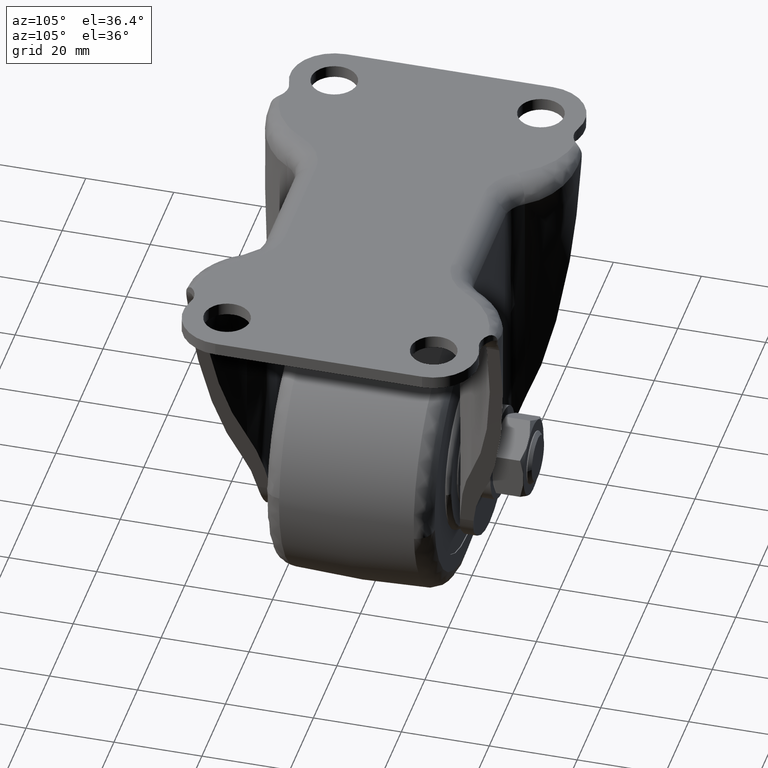
[diagram: clean part render]
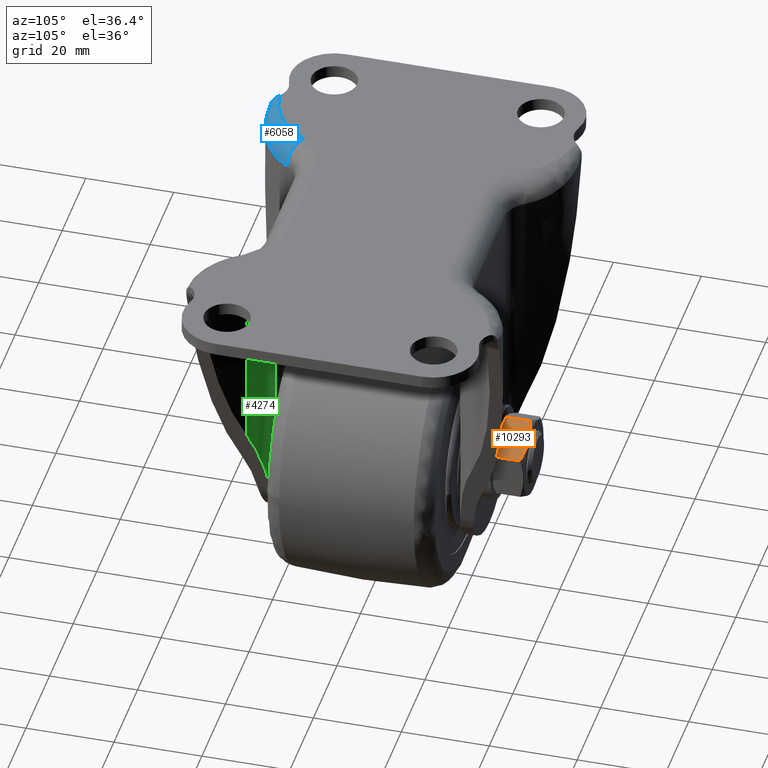
[diagram: same view with three faces highlighted in distinct colors, each labeled with its STEP entity id]
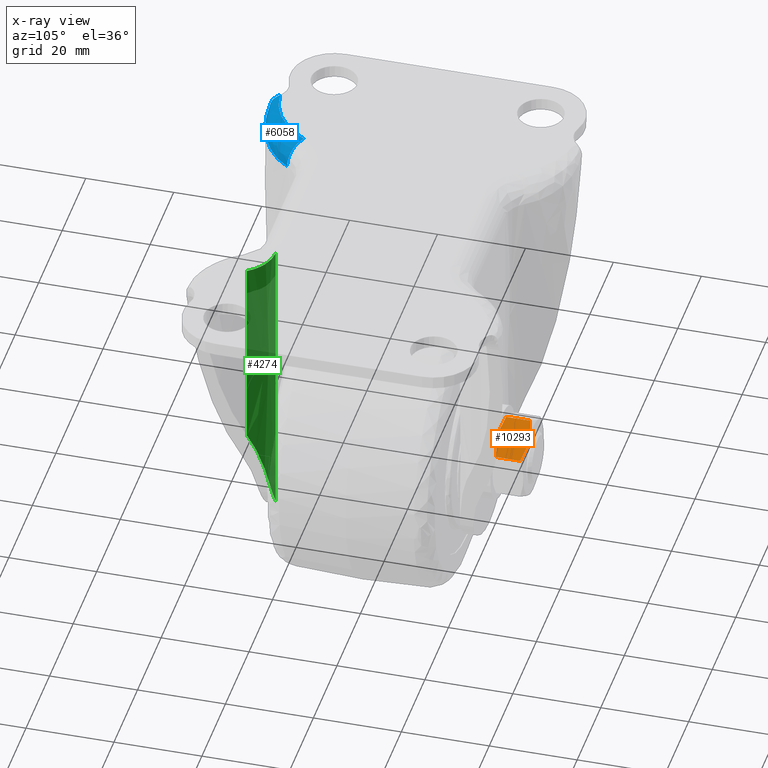
[diagram: x-ray of the same camera — body ghosted, the three highlighted faces saturated]
A machine part, auxiliary view with three faces highlighted in distinct colors.
The next image is the same camera in x-ray (body ghosted, the three faces saturated) — at least one of them is partly hidden behind the body in this view.
Their STEP definitions:

[orange] entity #10293 — the highlighted face is a freeform B-spline surface patch.
#9803=CARTESIAN_POINT('',(8.500094999995781,27.759237460925249,-54.592521999999903));
#9804=VERTEX_POINT('',#9803);
#9826=CARTESIAN_POINT('',(0.000094999995781,27.759190000265502,-49.685044999999903));
#9827=VERTEX_POINT('',#9826);
#9828=CARTESIAN_POINT('',(0.000094999995781,27.759190000265502,-49.685044999999903));
#9829=CARTESIAN_POINT('',(0.694040081405281,27.527878749850561,-50.085694356032860));
#9830=CARTESIAN_POINT('',(1.393044515023737,27.337237662208860,-50.489264730254121));
#9831=CARTESIAN_POINT('',(2.452484572657468,27.139165434838318,-51.100932696808947));
#9832=CARTESIAN_POINT('',(2.807457861974590,27.087824712988919,-51.305876608919348));
#9833=CARTESIAN_POINT('',(3.521538408228838,27.018374625610232,-51.718151180318159));
#9834=CARTESIAN_POINT('',(3.880649237177674,27.000293974092500,-51.925483901908443));
#9835=CARTESIAN_POINT('',(4.422640181580631,26.999898973666809,-52.238402501186798));
#9836=CARTESIAN_POINT('',(4.604219428678799,27.004235044939271,-52.343237322223430));
#9837=CARTESIAN_POINT('',(4.965730268520192,27.021703260257489,-52.551955690667207));
#9838=CARTESIAN_POINT('',(5.145857666305345,27.034815216462000,-52.655952286161387));
#9839=CARTESIAN_POINT('',(5.684437335904236,27.086716209072229,-52.966901385128949));
#9840=CARTESIAN_POINT('',(6.041082870128923,27.138099743471710,-53.172810768230157));
#9841=CARTESIAN_POINT('',(7.104669812751475,27.336512878907659,-53.786872939809037));
#9842=CARTESIAN_POINT('',(7.805286305197561,27.527632524756552,-54.191374036573727));
#9843=CARTESIAN_POINT('',(8.500094999995811,27.759237460925029,-54.592521999999917));
#9844=B_SPLINE_CURVE_WITH_KNOTS('',3,(#9828,#9829,#9830,#9831,#9832,#9833,#9834,#9835,#9836,#9837,#9838,#9839,#9840,#9841,#9842,#9843),.UNSPECIFIED.,.F.,.U.,(4,2,2,2,2,2,2,4),(0.0,0.250000000000001,0.375000000000000,0.499999999999999,0.562499999999999,0.624999999999998,0.750000000000000,1.0),.UNSPECIFIED.);
#9845=EDGE_CURVE('',#9827,#9804,#9844,.T.);
#10199=CARTESIAN_POINT('',(0.000094999995781,33.240809999734701,-49.685044999999903));
#10200=VERTEX_POINT('',#10199);
#10216=CARTESIAN_POINT('',(8.500094999995781,33.240762539074950,-54.592521999999903));
#10217=VERTEX_POINT('',#10216);
#10218=CARTESIAN_POINT('',(8.500094999995781,33.240762539074950,-54.592521999999903));
#10219=CARTESIAN_POINT('',(7.806151379455720,33.472079114620428,-54.191873487400237));
#10220=CARTESIAN_POINT('',(7.107148276984080,33.662726922728311,-53.788303881716963));
#10221=CARTESIAN_POINT('',(6.047709813153969,33.860811260827383,-53.176636835345008));
#10222=CARTESIAN_POINT('',(5.692736986169851,33.912156345705078,-52.971693190162647));
#10223=CARTESIAN_POINT('',(4.978657172070663,33.981615603839728,-52.559419041473760));
#10224=CARTESIAN_POINT('',(4.619546612540989,33.999701061567933,-52.352086475432657));
#10225=CARTESIAN_POINT('',(4.077555882091682,34.000103344805247,-52.039167999680529));
#10226=CARTESIAN_POINT('',(3.895976625238374,33.995769718248972,-51.934333173011773));
#10227=CARTESIAN_POINT('',(3.534465476368421,33.978306304553492,-51.725614626150197));
#10228=CARTESIAN_POINT('',(3.354337897402191,33.965196712406033,-51.621617926051123));
#10229=CARTESIAN_POINT('',(2.815757616886254,33.913302642591297,-51.310668474370473));
#10230=CARTESIAN_POINT('',(2.459111586067389,33.861923492466062,-51.104758804560490));
#10231=CARTESIAN_POINT('',(1.395522973615695,33.663522513836647,-50.490695668905367));
#10232=CARTESIAN_POINT('',(0.694905135966215,33.472409596961690,-50.086193795487183));
#10233=CARTESIAN_POINT('',(0.000094999995753,33.240809999734907,-49.685044999999889));
#10234=B_SPLINE_CURVE_WITH_KNOTS('',3,(#10218,#10219,#10220,#10221,#10222,#10223,#10224,#10225,#10226,#10227,#10228,#10229,#10230,#10231,#10232,#10233),.UNSPECIFIED.,.F.,.U.,(4,2,2,2,2,2,2,4),(0.0,0.249999999999998,0.374999999999997,0.499999999999996,0.562499999999997,0.624999999999997,0.749999999999998,1.0),.UNSPECIFIED.);
#10235=EDGE_CURVE('',#10217,#10200,#10234,.T.);
#10268=CARTESIAN_POINT('',(8.500094999995781,33.240762539074950,-54.592521999999903));
#10269=CARTESIAN_POINT('',(8.500094999995781,27.759237460925249,-54.592521999999903));
#10270=QUASI_UNIFORM_CURVE('',1,(#10268,#10269),.UNSPECIFIED.,.F.,.U.);
#10271=EDGE_CURVE('',#10217,#9804,#10270,.T.);
#10278=CARTESIAN_POINT('',(8.924669983521138,26.650380514689090,-54.837650466638252));
#10279=CARTESIAN_POINT('',(-0.424480211517340,26.650380514689090,-49.439916401732759));
#10280=CARTESIAN_POINT('',(8.924669983521138,34.349619673029892,-54.837650466638252));
#10281=CARTESIAN_POINT('',(-0.424480211517340,34.349619673029892,-49.439916401732759));
#10282=B_SPLINE_SURFACE_WITH_KNOTS('',1,1,((#10278,#10280),(#10279,#10281)),.UNSPECIFIED.,.F.,.F.,.U.,(2,2),(2,2),(0.0,10.795468605152310),(0.0,7.699239158340805),.UNSPECIFIED.);
#10283=ORIENTED_EDGE('',*,*,#10235,.T.);
#10284=CARTESIAN_POINT('',(0.000094999995781,33.240809999734701,-49.685044999999903));
#10285=CARTESIAN_POINT('',(0.000094999995781,27.759190000265502,-49.685044999999903));
#10286=QUASI_UNIFORM_CURVE('',1,(#10284,#10285),.UNSPECIFIED.,.F.,.U.);
#10287=EDGE_CURVE('',#10200,#9827,#10286,.T.);
#10288=ORIENTED_EDGE('',*,*,#10287,.T.);
#10289=ORIENTED_EDGE('',*,*,#9845,.T.);
#10290=ORIENTED_EDGE('',*,*,#10271,.F.);
#10291=EDGE_LOOP('',(#10283,#10288,#10289,#10290));
#10292=FACE_OUTER_BOUND('',#10291,.T.);
#10293=ADVANCED_FACE('',(#10292),#10282,.F.);

[blue] entity #6058 — the highlighted face is a freeform B-spline surface patch.
#3959=CARTESIAN_POINT('',(-18.621833761987101,-27.051020408163250,-5.0));
#3960=VERTEX_POINT('',#3959);
#3961=CARTESIAN_POINT('',(-35.764846533676099,-35.400926609159747,-2.000748511052920));
#3962=VERTEX_POINT('',#3961);
#3963=CARTESIAN_POINT('',(-18.621833761987119,-27.051020408163279,-5.000000000000004));
#3964=CARTESIAN_POINT('',(-18.722879082576739,-27.209233532115029,-4.999279782243343));
#3965=CARTESIAN_POINT('',(-18.926539454922018,-27.528117608546271,-4.997828158203402));
#3966=CARTESIAN_POINT('',(-19.253390274609622,-27.997490791424561,-4.986346314740322));
#3967=CARTESIAN_POINT('',(-19.599171201225619,-28.463830583078970,-4.968090480306860));
#3968=CARTESIAN_POINT('',(-19.965597633624022,-28.925274922069089,-4.942362338849053));
#3969=CARTESIAN_POINT('',(-20.352558003409332,-29.381042038472881,-4.909353411777840));
#3970=CARTESIAN_POINT('',(-20.760388212209438,-29.830005288616292,-4.869011256139199));
#3971=CARTESIAN_POINT('',(-21.189243929729500,-30.271085109472342,-4.821350290839388));
#3972=CARTESIAN_POINT('',(-21.639268415103022,-30.703143110346229,-4.766366609129262));
#3973=CARTESIAN_POINT('',(-22.110542221549888,-31.125012917802810,-4.704061282451288));
#3974=CARTESIAN_POINT('',(-22.603092676041999,-31.535493865852029,-4.634434145531365));
#3975=CARTESIAN_POINT('',(-23.116886821344359,-31.933355122998279,-4.557484851452400));
#3976=CARTESIAN_POINT('',(-23.651829408740021,-32.317337540253313,-4.473215057281177));
#3977=CARTESIAN_POINT('',(-24.207757532420970,-32.686155527372733,-4.381618392313380));
#3978=CARTESIAN_POINT('',(-24.784443819060581,-33.038502869521388,-4.282719174705983));
#3979=CARTESIAN_POINT('',(-25.381568378748089,-33.373044143164577,-4.176424696567776));
#3980=CARTESIAN_POINT('',(-25.978087597627969,-33.677873325669701,-4.066893212338185));
#3981=CARTESIAN_POINT('',(-26.586494235021540,-33.961050105032513,-3.950799442732903));
#3982=CARTESIAN_POINT('',(-27.220694071399201,-34.228403306437727,-3.825622256542251));
#3983=CARTESIAN_POINT('',(-27.917780163858829,-34.490120339301477,-3.684922662546641));
#3984=CARTESIAN_POINT('',(-28.678998770921790,-34.739207216879343,-3.528591432860134));
#3985=CARTESIAN_POINT('',(-29.505180704955841,-34.968024589436133,-3.356654268774770));
#3986=CARTESIAN_POINT('',(-30.396597473582609,-35.168325050231253,-3.169099012967021));
#3987=CARTESIAN_POINT('',(-31.352818398185931,-35.331132377072237,-2.965922055735010));
#3988=CARTESIAN_POINT('',(-32.372637126040829,-35.447399560206897,-2.747134213437073));
#3989=CARTESIAN_POINT('',(-33.453643086455337,-35.505575007803373,-2.512677466261931));
#3990=CARTESIAN_POINT('',(-34.593212877330210,-35.501796100445063,-2.262778093498057));
#3991=CARTESIAN_POINT('',(-35.367998184380419,-35.435092940527220,-2.089501526912427));
#3992=CARTESIAN_POINT('',(-35.764846605445612,-35.400927290439938,-2.000748512068995));
#3993=B_SPLINE_CURVE_WITH_KNOTS('',3,(#3963,#3964,#3965,#3966,#3967,#3968,#3969,#3970,#3971,#3972,#3973,#3974,#3975,#3976,#3977,#3978,#3979,#3980,#3981,#3982,#3983,#3984,#3985,#3986,#3987,#3988,#3989,#3990,#3991,#3992),.UNSPECIFIED.,.F.,.U.,(4,1,1,1,1,1,1,1,1,1,1,1,1,1,1,1,1,1,1,1,1,1,1,1,1,1,1,4),(0.0,0.027659186453864,0.055748056209740,0.084271005370457,0.113232232273239,0.142635747423386,0.172485382957289,0.202784801645888,0.233537505451716,0.264746843654122,0.296416020558378,0.328548102805012,0.361146026296170,0.394212602755969,0.427750525941749,0.461762377523000,0.496250632644360,0.527744042084907,0.562093961092381,0.599302316875690,0.639370600439464,0.682299980891362,0.728091384151486,0.776745548573920,0.828263065149670,0.882644407146548,0.939889952347740,1.0),.UNSPECIFIED.);
#3994=EDGE_CURVE('',#3960,#3962,#3993,.T.);
#4445=CARTESIAN_POINT('',(-35.766013286104453,-35.398302573218047,-1.908834651076770));
#4446=VERTEX_POINT('',#4445);
#4463=CARTESIAN_POINT('',(-37.161353402992098,-33.556329244536649,0.0));
#4464=VERTEX_POINT('',#4463);
#4465=CARTESIAN_POINT('',(-35.766013286104453,-35.398302573218047,-1.908834651076770));
#4466=CARTESIAN_POINT('',(-35.766298377834580,-35.397635589379469,-1.892002950340468));
#4467=CARTESIAN_POINT('',(-35.767668234627727,-35.394433773405893,-1.828097132016503));
#4468=CARTESIAN_POINT('',(-35.772978054041403,-35.382047359985002,-1.717590204438918));
#4469=CARTESIAN_POINT('',(-35.783928849541617,-35.356835293366352,-1.578457269430277));
#4470=CARTESIAN_POINT('',(-35.799613601645277,-35.321396390601457,-1.441176746029262));
#4471=CARTESIAN_POINT('',(-35.820181878539849,-35.276062895165524,-1.305751464928546));
#4472=CARTESIAN_POINT('',(-35.862048103722998,-35.186579295587592,-1.088591458539992));
#4473=CARTESIAN_POINT('',(-35.942791169063753,-35.023882642571003,-0.804821222794657));
#4474=CARTESIAN_POINT('',(-36.076443654644493,-34.789509640075302,-0.539143930653563));
#4475=CARTESIAN_POINT('',(-36.221535567719762,-34.567138375807588,-0.351300009626354));
#4476=CARTESIAN_POINT('',(-36.363326986542027,-34.371335864828360,-0.222205891315228));
#4477=CARTESIAN_POINT('',(-36.526726384898573,-34.168857300254743,-0.122060838617019));
#4478=CARTESIAN_POINT('',(-36.713730408546873,-33.962647141471798,-0.051306802783097));
#4479=CARTESIAN_POINT('',(-36.924911849470433,-33.754296273479277,-0.007632265636836));
#4480=CARTESIAN_POINT('',(-37.081212954961863,-33.623428982964093,-0.002586910712232));
#4481=CARTESIAN_POINT('',(-37.161353402992098,-33.556329244536649,0.0));
#4482=B_SPLINE_CURVE_WITH_KNOTS('',3,(#4465,#4466,#4467,#4468,#4469,#4470,#4471,#4472,#4473,#4474,#4475,#4476,#4477,#4478,#4479,#4480,#4481),.UNSPECIFIED.,.F.,.U.,(4,1,1,1,1,1,1,1,1,1,1,1,1,1,4),(0.026803939648019,0.041543947569744,0.082807145297144,0.124044897793733,0.165512977007265,0.207462938230864,0.250137810844705,0.374109604033202,0.499569613552021,0.578663114780517,0.657933200217229,0.738598211159108,0.821815175455286,0.908639087188106,1.0),.UNSPECIFIED.);
#4483=EDGE_CURVE('',#4446,#4464,#4482,.T.);
#5115=CARTESIAN_POINT('',(-35.766013286104453,-35.398302573218047,-1.908834651076770));
#5116=CARTESIAN_POINT('',(-35.765702087917873,-35.399880936368262,-1.939719168225256));
#5117=CARTESIAN_POINT('',(-35.765311975900147,-35.400743537032582,-1.970370798996724));
#5118=CARTESIAN_POINT('',(-35.764846533676099,-35.400926609159747,-2.000748511052920));
#5119=B_SPLINE_CURVE_WITH_KNOTS('',3,(#5115,#5116,#5117,#5118),.UNSPECIFIED.,.F.,.U.,(4,4),(0.000003221873084,0.996437514912697),.UNSPECIFIED.);
#5120=EDGE_CURVE('',#4446,#3962,#5119,.T.);
#5947=CARTESIAN_POINT('',(-22.859907161435100,-24.397959183673500,0.0));
#5948=VERTEX_POINT('',#5947);
#5949=CARTESIAN_POINT('',(-22.859907161435100,-24.397959183673500,0.0));
#5950=CARTESIAN_POINT('',(-18.621833761986807,-27.051020408162852,-1.734723E-015));
#5951=CARTESIAN_POINT('',(-18.621833761986821,-27.051020408162799,-5.0));
#5959=(BOUNDED_CURVE()B_SPLINE_CURVE(2,(#5949,#5950,#5951),.UNSPECIFIED.,.F.,.U.)CURVE()GEOMETRIC_REPRESENTATION_ITEM()QUASI_UNIFORM_CURVE()RATIONAL_B_SPLINE_CURVE((1.0,0.707106781186547,1.0))REPRESENTATION_ITEM(''));
#5960=EDGE_CURVE('',#5948,#3960,#5959,.T.);
#5980=CARTESIAN_POINT('',(-18.506352498116637,-26.865269835217052,-5.069965964481315));
#5981=CARTESIAN_POINT('',(-18.506352498001039,-26.865269835292217,-5.052515462511924));
#5982=CARTESIAN_POINT('',(-18.506352497768422,-26.865269835443453,-5.017401471808997));
#5983=CARTESIAN_POINT('',(-18.506352462553171,-26.865269858345869,-1.642856E-012));
#5984=CARTESIAN_POINT('',(-22.794959474091858,-24.255505667915404,6.684492E-015));
#5985=CARTESIAN_POINT('',(-22.827076367009173,-24.235961439082704,1.903773E-014));
#5986=CARTESIAN_POINT('',(-22.841830335985556,-24.226983143871927,2.471260E-014));
#5987=CARTESIAN_POINT('',(-20.662695439628383,-30.406820524234359,-5.090224766861125));
#5988=CARTESIAN_POINT('',(-20.662695448371434,-30.406820518580645,-5.072704531280184));
#5989=CARTESIAN_POINT('',(-20.662695465969652,-30.406820507200752,-5.037450222281660));
#5990=CARTESIAN_POINT('',(-20.662698130386456,-30.406818783906285,3.110683E-011));
#5991=CARTESIAN_POINT('',(-24.340901533173145,-26.752408095348201,-1.265687E-013));
#5992=CARTESIAN_POINT('',(-24.368447195760993,-26.725040614782081,-3.604732E-013));
#5993=CARTESIAN_POINT('',(-24.381101217222135,-26.712468447194897,-4.679251E-013));
#5994=CARTESIAN_POINT('',(-24.071124955865564,-33.150487796869889,-4.523771812519571));
#5995=CARTESIAN_POINT('',(-24.071124956162908,-33.150487796861853,-4.508201274759225));
#5996=CARTESIAN_POINT('',(-24.071124956761135,-33.150487796845688,-4.476870157802163));
#5997=CARTESIAN_POINT('',(-24.071125063969305,-33.150487787144002,6.439974E-015));
#5998=CARTESIAN_POINT('',(-26.340830825014891,-29.196622763471044,-2.005331E-017));
#5999=CARTESIAN_POINT('',(-26.357828392485050,-29.167012710489043,-5.702074E-017));
#6000=CARTESIAN_POINT('',(-26.365636793620428,-29.153410342283561,-7.400295E-017));
#6001=CARTESIAN_POINT('',(-29.902350219460864,-35.172589732166863,-3.338942202803280));
#6002=CARTESIAN_POINT('',(-29.902350156375572,-35.172589741907132,-3.327450024740806));
#6003=CARTESIAN_POINT('',(-29.902350029434977,-35.172589761506536,-3.304325404351669));
#6004=CARTESIAN_POINT('',(-29.902328005918967,-35.172593953365180,-8.644291E-013));
#6005=CARTESIAN_POINT('',(-30.591310577455204,-31.912243557093191,2.481292E-015));
#6006=CARTESIAN_POINT('',(-30.596470673180164,-31.887827988232107,7.051339E-015));
#6007=CARTESIAN_POINT('',(-30.598841135741331,-31.876611880047406,9.150743E-015));
#6008=CARTESIAN_POINT('',(-33.189965018952584,-35.717898636500671,-2.618125723527324));
#6009=CARTESIAN_POINT('',(-33.189965329204803,-35.717898588647799,-2.609113072433970));
#6010=CARTESIAN_POINT('',(-33.189965953495857,-35.717898492357875,-2.590977769091098));
#6011=CARTESIAN_POINT('',(-33.190074263663739,-35.717877890132996,-7.141898E-012));
#6012=CARTESIAN_POINT('',(-33.182907420530015,-33.095570856638972,3.415350E-014));
#6013=CARTESIAN_POINT('',(-33.182851864727141,-33.075928630270347,9.734684E-014));
#6014=CARTESIAN_POINT('',(-33.182826343311177,-33.066905316613656,1.263768E-013));
#6015=CARTESIAN_POINT('',(-36.473713202202859,-35.355177464473257,-1.868251025620592));
#6016=CARTESIAN_POINT('',(-36.473712552400571,-35.355177558944824,-1.861823191057364));
#6017=CARTESIAN_POINT('',(-36.473711244867395,-35.355177749051471,-1.848889068959562));
#6018=CARTESIAN_POINT('',(-36.473484505169807,-35.355219361384641,5.142896E-012));
#6019=CARTESIAN_POINT('',(-36.188593130010283,-33.524543408753132,-3.157552E-014));
#6020=CARTESIAN_POINT('',(-36.186463544147358,-33.510842183655299,-9.008772E-014));
#6021=CARTESIAN_POINT('',(-36.185485247623923,-33.504548067649409,-1.169673E-013));
#6022=CARTESIAN_POINT('',(-37.697598601277804,-35.089909224451738,-1.584038884643829));
#6023=CARTESIAN_POINT('',(-37.697598116563206,-35.089909407219373,-1.578586544556764));
#6024=CARTESIAN_POINT('',(-37.697597141217983,-35.089909774985315,-1.567615317513427));
#6025=CARTESIAN_POINT('',(-37.697460552090057,-35.089961330227965,4.877572E-012));
#6026=CARTESIAN_POINT('',(-37.364775146737230,-33.557159721411658,-1.910553E-014));
#6027=CARTESIAN_POINT('',(-37.362283429496571,-33.545680152566078,-5.440232E-014));
#6028=CARTESIAN_POINT('',(-37.361138775841525,-33.540406628659348,-7.061708E-014));
#6036=(BOUNDED_SURFACE()B_SPLINE_SURFACE(2,3,((#5980,#5987,#5994,#6001,#6008,#6015,#6022),(#5981,#5988,#5995,#6002,#6009,#6016,#6023),(#5982,#5989,#5996,#6003,#6010,#6017,#6024),(#5983,#5990,#5997,#6004,#6011,#6018,#6025),(#5984,#5991,#5998,#6005,#6012,#6019,#6026),(#5985,#5992,#5999,#6006,#6013,#6020,#6027),(#5986,#5993,#6000,#6007,#6014,#6021,#6028)),.UNSPECIFIED.,.F.,.F.,.U.)B_SPLINE_SURFACE_WITH_KNOTS((3,1,1,1,1,3),(4,2,1,4),(0.0,0.041309732448455,0.082761139602321,8.366745961184638,8.414493977529338,8.455411984819437),(0.0,12.733806532096221,18.988737008566321,22.841860188563562),.UNSPECIFIED.)GEOMETRIC_REPRESENTATION_ITEM()RATIONAL_B_SPLINE_SURFACE(((1.005852298644401,1.005852298644401,1.005852298644401,1.005852298644401,1.005852298644401,1.005852298644401,1.005852298644401),(1.004391728548518,1.004391728548518,1.004391728548518,1.004391728548518,1.004391728548518,1.004391728548518,1.004391728548518),(1.001465579226318,1.001465579226318,1.001465579226318,1.001465579226318,1.001465579226318,1.001465579226318,1.001465579226318),(0.707106781186547,0.707106781186547,0.707106781186547,0.707106781186547,0.707106781186547,0.707106781186547,0.707106781186547),(1.001688205676418,1.001688205676418,1.001688205676418,1.001688205676418,1.001688205676418,1.001688205676418,1.001688205676418),(1.004823131394066,1.004823131394066,1.004823131394066,1.004823131394066,1.004823131394066,1.004823131394066,1.004823131394066),(1.006269851435296,1.006269851435296,1.006269851435296,1.006269851435296,1.006269851435296,1.006269851435296,1.006269851435296)))REPRESENTATION_ITEM('')SURFACE());
#6037=ORIENTED_EDGE('',*,*,#4483,.F.);
#6038=ORIENTED_EDGE('',*,*,#5120,.T.);
#6039=ORIENTED_EDGE('',*,*,#3994,.F.);
#6040=ORIENTED_EDGE('',*,*,#5960,.F.);
#6041=CARTESIAN_POINT('',(-37.161353402992098,-33.556329244536649,0.0));
#6042=CARTESIAN_POINT('',(-36.608431443263278,-33.534199712367929,0.0));
#6043=CARTESIAN_POINT('',(-35.320772976158651,-33.416525116737333,0.0));
#6044=CARTESIAN_POINT('',(-33.694856488767890,-33.061180860822461,0.0));
#6045=CARTESIAN_POINT('',(-31.987352014526230,-32.492923448836997,0.0));
#6046=CARTESIAN_POINT('',(-30.299640906838789,-31.739263950870690,0.0));
#6047=CARTESIAN_POINT('',(-29.002923841010499,-30.935725176848269,0.0));
#6048=CARTESIAN_POINT('',(-27.619323079013888,-29.937208437283719,0.0));
#6049=CARTESIAN_POINT('',(-26.353550884865740,-28.856463637414201,0.0));
#6050=CARTESIAN_POINT('',(-24.516993757067890,-26.843864925188200,0.0));
#6051=CARTESIAN_POINT('',(-23.447125304018950,-25.335801528846620,0.0));
#6052=CARTESIAN_POINT('',(-22.859907161435100,-24.397959183673500,0.0));
#6053=B_SPLINE_CURVE_WITH_KNOTS('',3,(#6041,#6042,#6043,#6044,#6045,#6046,#6047,#6048,#6049,#6050,#6051,#6052),.UNSPECIFIED.,.F.,.U.,(4,1,1,1,1,1,1,1,1,4),(0.000052007686183,1.660194358187304,3.873681508204474,4.980436459371161,7.055581870818079,9.407387232517444,9.545737091382543,12.174224598822590,14.387783663936331,17.708070310262240),.UNSPECIFIED.);
#6054=EDGE_CURVE('',#4464,#5948,#6053,.T.);
#6055=ORIENTED_EDGE('',*,*,#6054,.F.);
#6056=EDGE_LOOP('',(#6037,#6038,#6039,#6040,#6055));
#6057=FACE_OUTER_BOUND('',#6056,.T.);
#6058=ADVANCED_FACE('',(#6057),#6036,.T.);

[green] entity #4274 — the highlighted face is a freeform B-spline surface patch.
#3651=CARTESIAN_POINT('',(13.112529342704841,-21.100000000000001,-72.615372478840001));
#3652=VERTEX_POINT('',#3651);
#3653=CARTESIAN_POINT('',(15.788895217503899,-21.489058556165649,-67.391547508985795));
#3654=VERTEX_POINT('',#3653);
#3655=CARTESIAN_POINT('',(13.112529342704800,-21.100000000000001,-72.615372478839987));
#3656=CARTESIAN_POINT('',(13.262377682579061,-21.100000000000001,-72.419188794697448));
#3657=CARTESIAN_POINT('',(13.408182264475281,-21.103580292559009,-72.219176181642979));
#3658=CARTESIAN_POINT('',(13.620687496377720,-21.113477545811229,-71.913359515759140));
#3659=CARTESIAN_POINT('',(13.690562948580830,-21.117538128247290,-71.810337121695397));
#3660=CARTESIAN_POINT('',(13.827549460056209,-21.126982350587500,-71.603376034765247));
#3661=CARTESIAN_POINT('',(13.894727559515809,-21.132367323510909,-71.499346473165232));
#3662=CARTESIAN_POINT('',(14.224135809730280,-21.162208652223981,-70.976463162988836));
#3663=CARTESIAN_POINT('',(14.466970524330190,-21.195344305237079,-70.549420609718027));
#3664=CARTESIAN_POINT('',(14.912790391186601,-21.271230381579251,-69.677820661432634));
#3665=CARTESIAN_POINT('',(15.115770835520641,-21.314004683583459,-69.233263107492888));
#3666=CARTESIAN_POINT('',(15.482194059944909,-21.401638853088269,-68.326144136321290));
#3667=CARTESIAN_POINT('',(15.645637757706330,-21.446509242189720,-67.863584024807125));
#3668=CARTESIAN_POINT('',(15.788895217503921,-21.489058556165670,-67.391547508985795));
#3669=B_SPLINE_CURVE_WITH_KNOTS('',3,(#3655,#3656,#3657,#3658,#3659,#3660,#3661,#3662,#3663,#3664,#3665,#3666,#3667,#3668),.UNSPECIFIED.,.F.,.U.,(4,2,2,2,2,2,4),(0.0,0.124999999999994,0.187499999999991,0.249999999999988,0.499999999999992,0.749999999999996,1.0),.UNSPECIFIED.);
#3670=EDGE_CURVE('',#3652,#3654,#3669,.T.);
#3914=CARTESIAN_POINT('',(21.080107333667101,-25.512244897959199,-49.956885919186902));
#3915=VERTEX_POINT('',#3914);
#3916=CARTESIAN_POINT('',(21.080107333667080,-25.512244897959199,-49.956885919186860));
#3917=CARTESIAN_POINT('',(19.194841077492001,-22.500668422671076,-56.168880158214648));
#3918=CARTESIAN_POINT('',(15.788895217503891,-21.489058556165670,-67.391547508985795));
#3926=(BOUNDED_CURVE()B_SPLINE_CURVE(2,(#3916,#3917,#3918),.UNSPECIFIED.,.F.,.U.)CURVE()GEOMETRIC_REPRESENTATION_ITEM()QUASI_UNIFORM_CURVE()RATIONAL_B_SPLINE_CURVE((1.0,0.935409879223287,1.0))REPRESENTATION_ITEM(''));
#3927=EDGE_CURVE('',#3915,#3654,#3926,.T.);
#4233=CARTESIAN_POINT('',(12.866466028610819,-21.103221145229771,-74.308256790811001));
#4234=CARTESIAN_POINT('',(12.866466028610819,-21.103221145229771,-3.164793580229727));
#4235=CARTESIAN_POINT('',(18.512620388153156,-20.955371390003265,-74.308256790811001));
#4236=CARTESIAN_POINT('',(18.512620388153156,-20.955371390003265,-3.164793580229727));
#4237=CARTESIAN_POINT('',(21.293872884539891,-25.871218535027410,-74.308256790811001));
#4238=CARTESIAN_POINT('',(21.293872884539891,-25.871218535027410,-3.164793580229727));
#4246=(BOUNDED_SURFACE()B_SPLINE_SURFACE(1,2,((#4233,#4235,#4237),(#4234,#4236,#4238)),.UNSPECIFIED.,.F.,.F.,.U.)B_SPLINE_SURFACE_WITH_KNOTS((2,2),(3,3),(0.0,71.143463210581288),(0.0,10.427402856649930),.UNSPECIFIED.)GEOMETRIC_REPRESENTATION_ITEM()RATIONAL_B_SPLINE_SURFACE(((1.0,0.857167300702112,1.0),(1.0,0.857167300702112,1.0)))REPRESENTATION_ITEM('')SURFACE());
#4247=CARTESIAN_POINT('',(13.112529342704841,-21.100000000000001,-4.900000000000000));
#4248=VERTEX_POINT('',#4247);
#4249=CARTESIAN_POINT('',(13.112529342704841,-21.100000000000001,-72.615372478840001));
#4250=CARTESIAN_POINT('',(13.112529342704841,-21.100000000000001,-4.900000000000000));
#4251=QUASI_UNIFORM_CURVE('',1,(#4249,#4250),.UNSPECIFIED.,.F.,.U.);
#4252=EDGE_CURVE('',#3652,#4248,#4251,.T.);
#4253=ORIENTED_EDGE('',*,*,#4252,.T.);
#4254=CARTESIAN_POINT('',(21.080107333667101,-25.512244897959199,-5.0));
#4255=VERTEX_POINT('',#4254);
#4256=CARTESIAN_POINT('',(13.112529342704860,-21.100000000000001,-4.900000000000016));
#4257=CARTESIAN_POINT('',(14.697171330926320,-21.100000000000001,-4.916666666666682));
#4258=CARTESIAN_POINT('',(16.280106511327521,-21.509029801425509,-4.933333333333346));
#4259=CARTESIAN_POINT('',(19.052652437136089,-23.044396211316030,-4.966666666666675));
#4260=CARTESIAN_POINT('',(20.239276890937319,-24.169079086373230,-4.983333333333340));
#4261=CARTESIAN_POINT('',(21.080107333667069,-25.512244897959182,-5.000000000000004));
#4262=B_SPLINE_CURVE_WITH_KNOTS('',3,(#4256,#4257,#4258,#4259,#4260,#4261),.UNSPECIFIED.,.F.,.U.,(4,2,4),(0.0,0.500000000000000,1.0),.UNSPECIFIED.);
#4263=EDGE_CURVE('',#4248,#4255,#4262,.T.);
#4264=ORIENTED_EDGE('',*,*,#4263,.T.);
#4265=CARTESIAN_POINT('',(21.080107333667101,-25.512244897959199,-49.956885919186902));
#4266=CARTESIAN_POINT('',(21.080107333667101,-25.512244897959199,-5.0));
#4267=QUASI_UNIFORM_CURVE('',1,(#4265,#4266),.UNSPECIFIED.,.F.,.U.);
#4268=EDGE_CURVE('',#3915,#4255,#4267,.T.);
#4269=ORIENTED_EDGE('',*,*,#4268,.F.);
#4270=ORIENTED_EDGE('',*,*,#3927,.T.);
#4271=ORIENTED_EDGE('',*,*,#3670,.F.);
#4272=EDGE_LOOP('',(#4253,#4264,#4269,#4270,#4271));
#4273=FACE_OUTER_BOUND('',#4272,.T.);
#4274=ADVANCED_FACE('',(#4273),#4246,.T.);